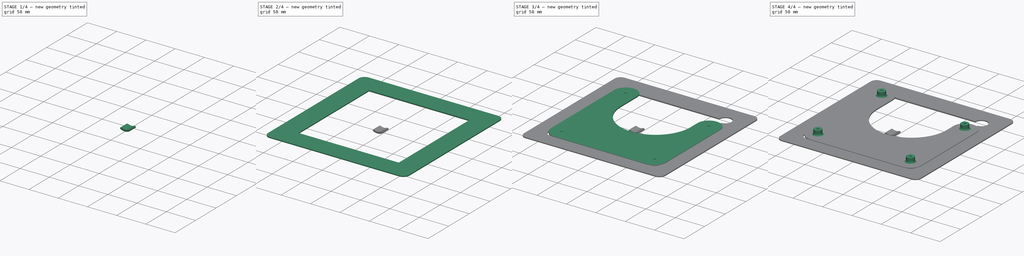
[diagram: build sequence overview — one tinted view per stage of 4, left to right]
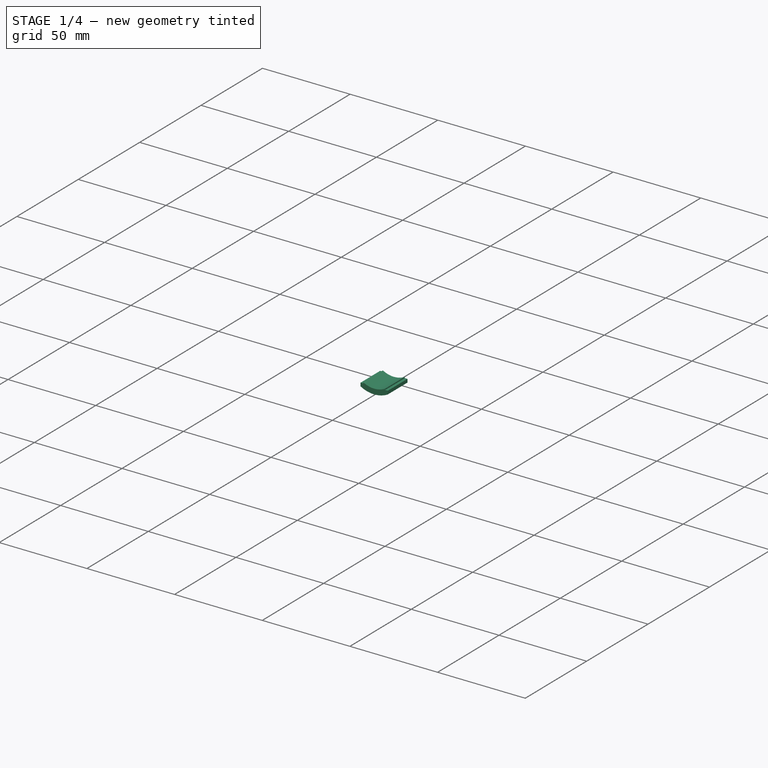
[diagram: stage 1 of 4 — iso view after this stage's code; geometry added in this stage tinted green]
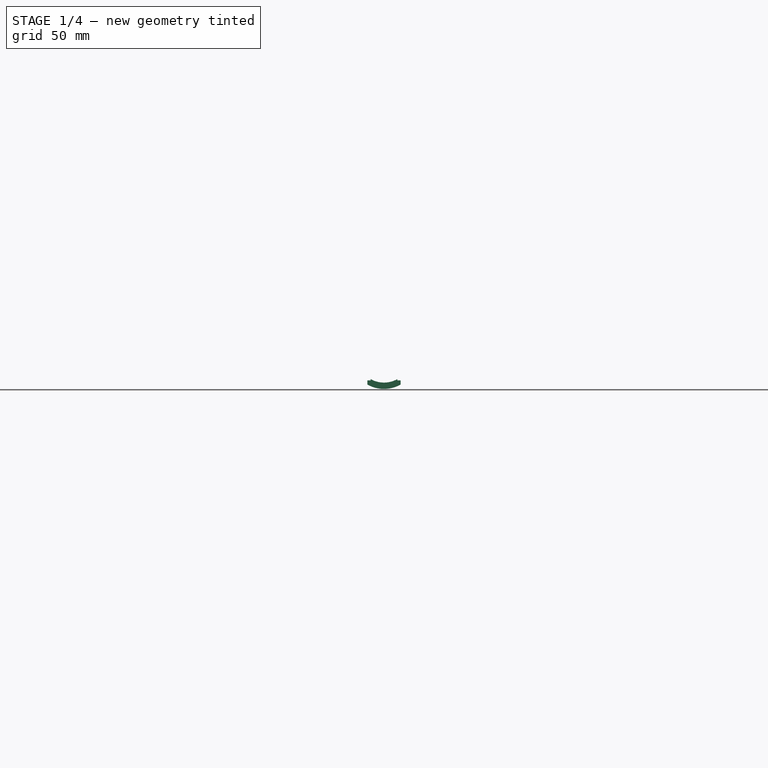
[diagram: stage 1 of 4 — front view after this stage's code; geometry added in this stage tinted green]
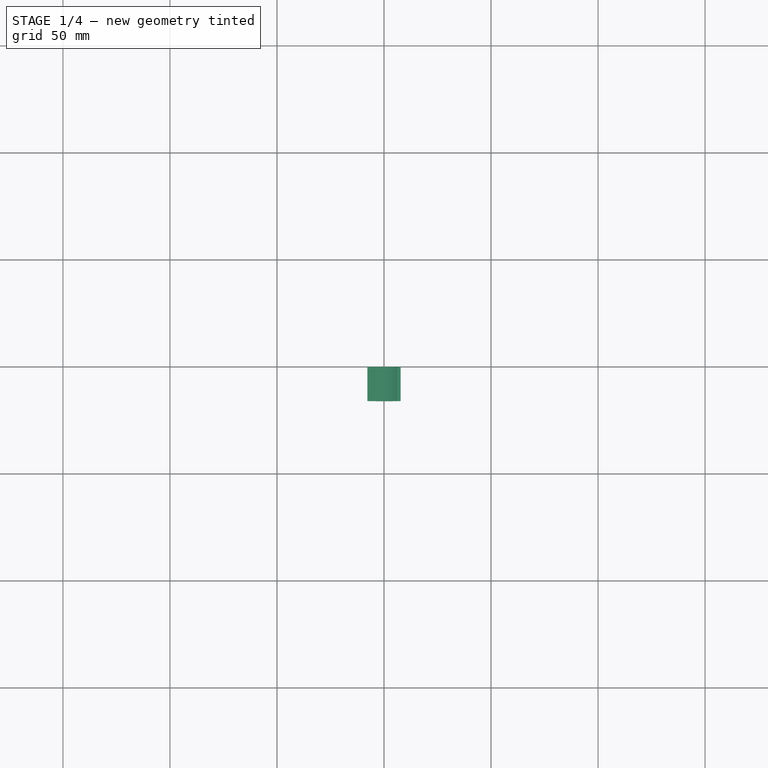
[diagram: stage 1 of 4 — top view after this stage's code; geometry added in this stage tinted green]
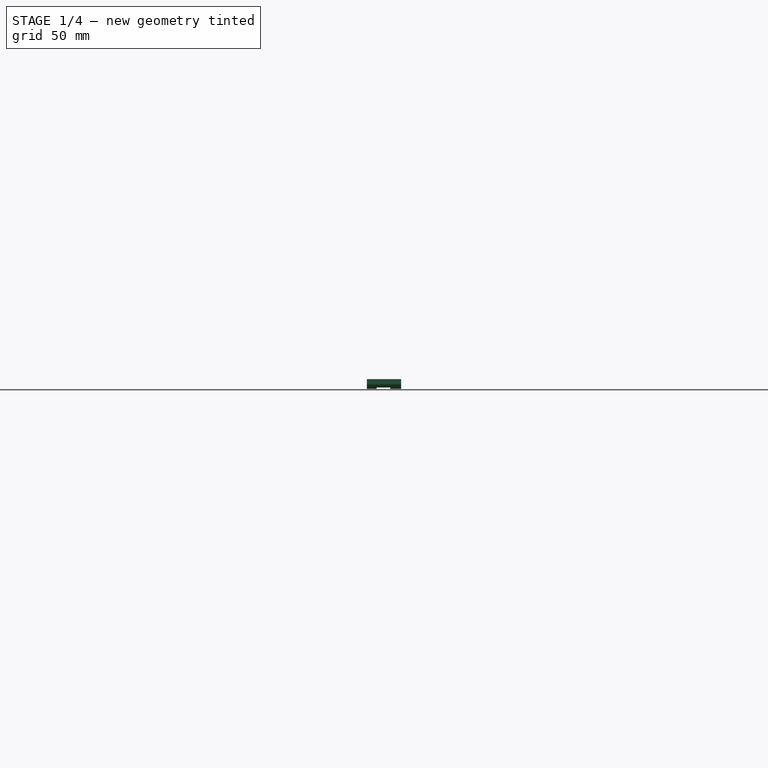
[diagram: stage 1 of 4 — right view after this stage's code; geometry added in this stage tinted green]
FCSTD DOCUMENT  (FreeCAD 1.0R39319 (Git))
Label: Controller Test Stand
License: All rights reserved
LicenseURL: https://en.wikipedia.org/wiki/All_rights_reserved
objects: Sketcher::SketchObject×8, PartDesign::Pad×5, PartDesign::Body×3, PartDesign::Pocket×3, PartDesign::Fillet×1
note: 46 computed .brp shape members not serialized (recipe doc carries the construction recipe); baked Part::Feature solids carry a one-line shape summary decoded from their .brp

FEATURE [PartDesign::Body] Body001  label="Stencil Holder"
  AllowCompound = false
  Group = -> [Sketch002,Pad002,Sketch003,Pocket,Sketch004,Pocket001,Sketch005,Pad003]
  Origin = -> Origin001
  Tip = -> Pad003
FEATURE [Sketcher::SketchObject] Sketch006
  ArcFitTolerance = 1e-06
  AttachmentSupport = -> [XZ_Plane002]
  FullyConstrained = true
  MakeInternals = false
  MapMode = 5
  Placement = pos=(0,0,0) rot=(1,0,0;1.5708rad)
  sketch-geometry (8):
    g0: ArcOfCircle CenterX=-7e-16 CenterY=11.6907 CenterZ=0 NormalX=0 NormalY=0 NormalZ=1 AngleXU=0 Radius=12.7 StartAngle=4.19786 EndAngle=5.22692
    g1: LineSegment StartX=6.25 StartY=0.635 StartZ=0 EndX=6.25 EndY=0 EndZ=0
    g2: LineSegment StartX=6.25 StartY=0 StartZ=0 EndX=7.774 EndY=0 EndZ=0
    g3: LineSegment StartX=7.774 StartY=0 StartZ=0 EndX=7.774 EndY=-1.905 EndZ=0
    g4: LineSegment StartX=-6.25 StartY=0.635 StartZ=0 EndX=-6.25 EndY=0 EndZ=0
    g5: LineSegment StartX=-6.25 StartY=0 StartZ=0 EndX=-7.774 EndY=0 EndZ=0
    g6: LineSegment StartX=-7.774 StartY=0 StartZ=0 EndX=-7.774 EndY=-1.905 EndZ=0
    g7: ArcOfCircle CenterX=3e-16 CenterY=11.6907 CenterZ=0 NormalX=0 NormalY=0 NormalZ=1 AngleXU=0 Radius=15.6613 StartAngle=4.19296 EndAngle=5.23182
  constraints (24):
    c: Coincident(g0,g1)
    c: Coincident(g1,g2)
    c: Horizontal(g2)
    c: Coincident(g2,g3)
    c: Vertical(g3)
    c: Coincident(g0,g4)
    c: Coincident(g4,g5)
    c: Horizontal(g5)
    c: Coincident(g5,g6)
    c: Vertical(g6)
    c: Coincident(g7,g6)
    c: Coincident(g7,g3)
    c: Symmetric(g6,g3,g-2)
    c: Symmetric(g0,g0,g-2)
    c: Vertical(g4)
    c: Vertical(g1)
    c: DistanceX(g0,g0) = 12.5
    c: Equal(g4,g1)
    c: Distance(g1,g1) = 0.635
    c: Distance(g2,g2) = 1.524
    c: Coincident(g7,g0)
    c: PointOnObject(g4,g-1)
    c: Radius(g0) = 12.7
    c: DistanceY(g3,g3) = 1.905
FEATURE [PartDesign::Pad] Pad004
  Direction = (0,-1,2e-16)
  Length = 16
  Length2 = 10
  Placement = pos=(0,0,0) rot=(1,0,0;1.5708rad)
  Profile = -> Sketch006
  ReferenceAxis = -> Sketch006 [N_Axis]
  Refine = true
  Suppressed = false
  Type = 0
FEATURE [Sketcher::SketchObject] Sketch007
  ArcFitTolerance = 1e-06
  AttachmentSupport = -> [Pad004]
  FullyConstrained = true
  MakeInternals = false
  MapMode = 5
  Placement = pos=(-7.774,0,0) rot=(0.707107,0,-0.707107;3.14159rad)
  sketch-geometry (4):
    g0: LineSegment StartX=3.302 StartY=11.43 StartZ=0 EndX=3.302 EndY=5.08 EndZ=0
    g1: LineSegment StartX=3.302 StartY=5.08 StartZ=0 EndX=16.002 EndY=5.08 EndZ=0
    g2: LineSegment StartX=16.002 StartY=5.08 StartZ=0 EndX=16.002 EndY=11.43 EndZ=0
    g3: LineSegment StartX=16.002 StartY=11.43 StartZ=0 EndX=3.302 EndY=11.43 EndZ=0
  constraints (12):
    c: Coincident(g0,g1)
    c: Coincident(g1,g2)
    c: Coincident(g2,g3)
    c: Coincident(g3,g0)
    c: Vertical(g0)
    c: Vertical(g2)
    c: Horizontal(g1)
    c: Horizontal(g3)
    c: DistanceX(g1,g1) = 12.7
    c: DistanceY(g0,g0) = 6.35
    c: Distance(g-2,g0) = 3.302
    c: Distance(g-1,g1) = 5.08
FEATURE [PartDesign::Pocket] Pocket002
  BaseFeature = -> Pad004
  Direction = (1,0,2e-16)
  Length = 5
  Length2 = 5
  Placement = pos=(0,0,0) rot=(1,0,0;1.5708rad)
  Profile = -> Sketch007
  ReferenceAxis = -> Sketch007 [N_Axis]
  Refine = true
  Suppressed = false
  Type = 1
FEATURE [PartDesign::Body] Body002  label="Strain Releif"
  AllowCompound = false
  Group = -> [Sketch006,Pad004,Sketch007,Pocket002]
  Origin = -> Origin002
  Tip = -> Pocket002
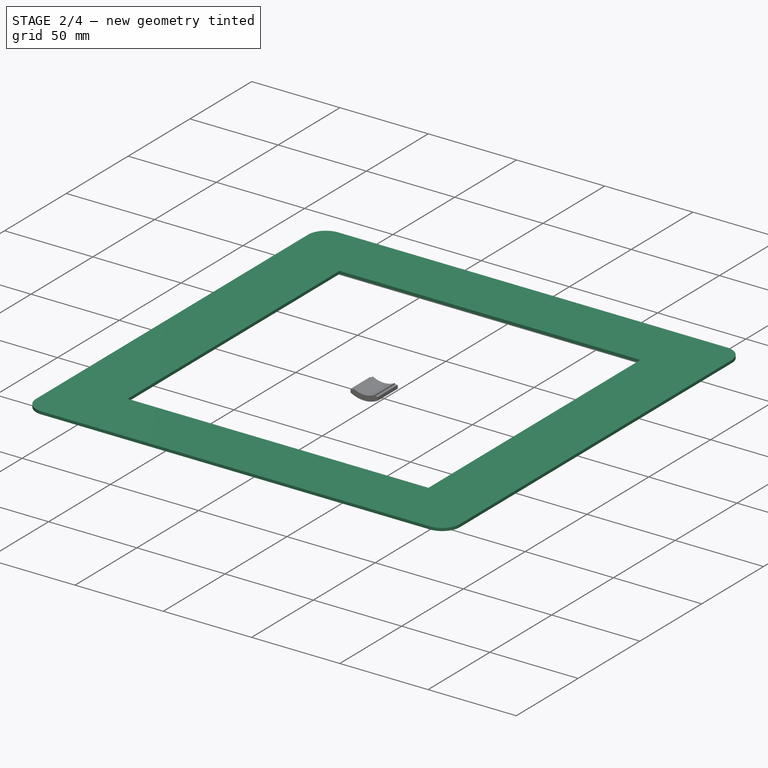
[diagram: stage 2 of 4 — iso view after this stage's code; geometry added in this stage tinted green]
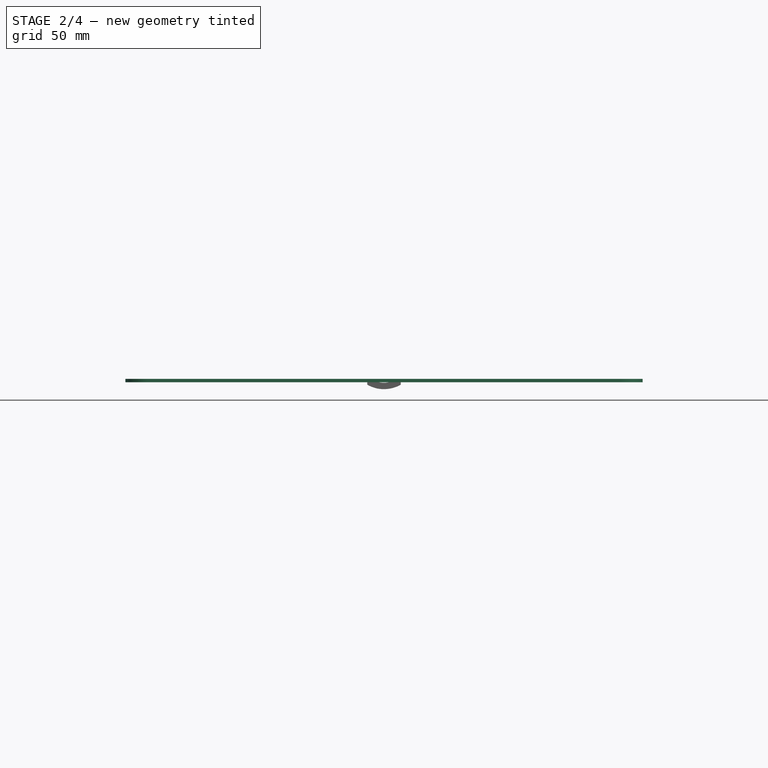
[diagram: stage 2 of 4 — front view after this stage's code; geometry added in this stage tinted green]
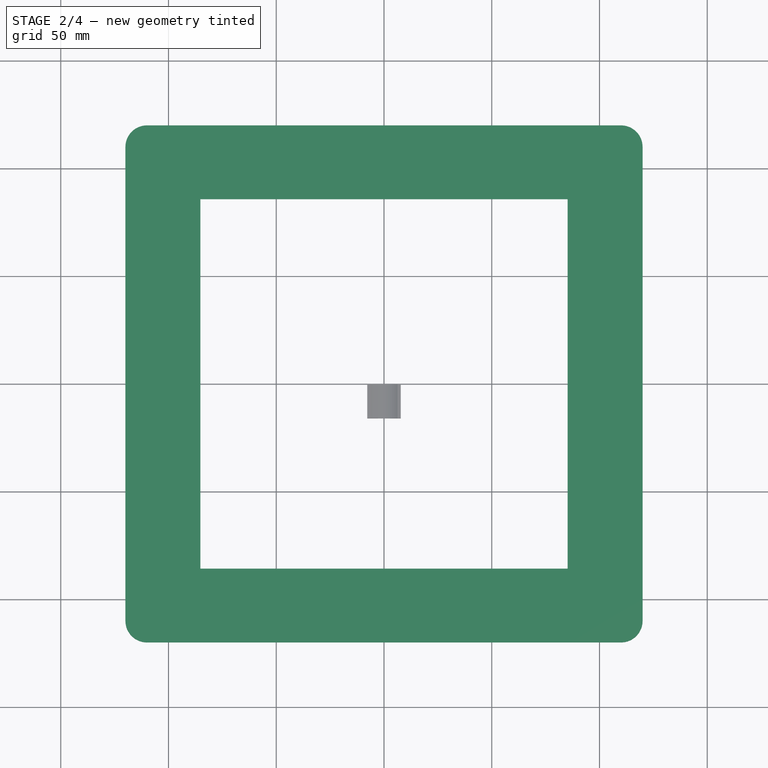
[diagram: stage 2 of 4 — top view after this stage's code; geometry added in this stage tinted green]
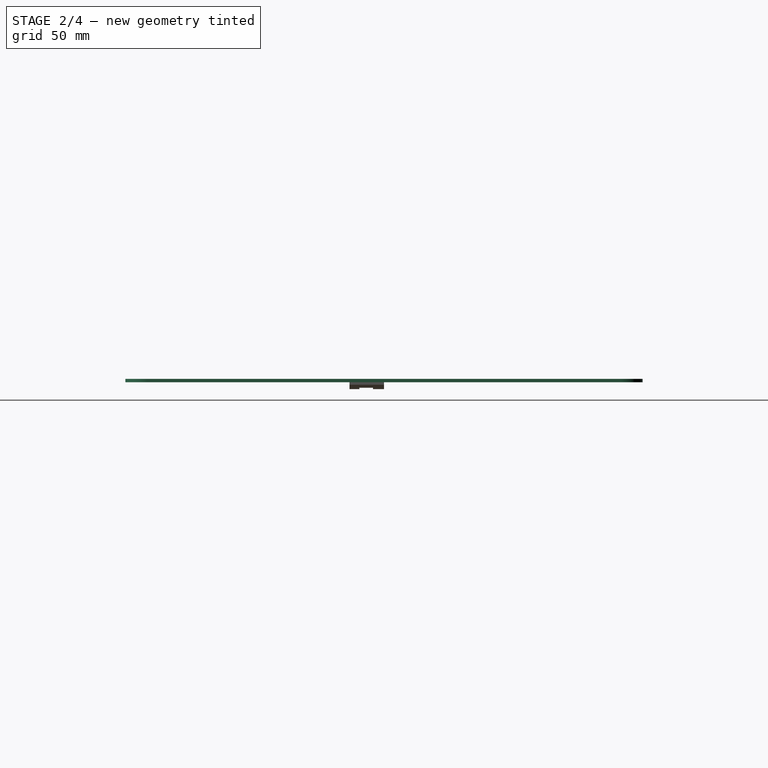
[diagram: stage 2 of 4 — right view after this stage's code; geometry added in this stage tinted green]
FEATURE [PartDesign::Body] Body  label="Test Stand"
  AllowCompound = false
  Group = -> [Sketch,Pad,Sketch001,Pad001,Fillet]
  Origin = -> Origin
  Tip = -> Fillet
FEATURE [Sketcher::SketchObject] Sketch002
  ArcFitTolerance = 1e-06
  AttachmentSupport = -> [XY_Plane001]
  FullyConstrained = true
  MakeInternals = false
  MapMode = 5
  sketch-geometry (10):
    g0: LineSegment StartX=-110 StartY=-120 StartZ=0 EndX=110 EndY=-120 EndZ=0
    g1: LineSegment StartX=120 StartY=-110 StartZ=0 EndX=120 EndY=110 EndZ=0
    g2: LineSegment StartX=110 StartY=120 StartZ=0 EndX=-110 EndY=120 EndZ=0
    g3: LineSegment StartX=-120 StartY=110 StartZ=0 EndX=-120 EndY=-110 EndZ=0
    g4: ArcOfCircle CenterX=-110 CenterY=-110 CenterZ=0 NormalX=0 NormalY=0 NormalZ=1 AngleXU=0 Radius=10 StartAngle=3.14159 EndAngle=4.71239
    g5: ArcOfCircle CenterX=110 CenterY=-110 CenterZ=0 NormalX=0 NormalY=0 NormalZ=1 AngleXU=0 Radius=10 StartAngle=4.71239 EndAngle=6.28319
    g6: ArcOfCircle CenterX=110 CenterY=110 CenterZ=0 NormalX=0 NormalY=0 NormalZ=1 AngleXU=0 Radius=10 StartAngle=4e-16 EndAngle=1.5708
    g7: ArcOfCircle CenterX=-110 CenterY=110 CenterZ=0 NormalX=0 NormalY=0 NormalZ=1 AngleXU=0 Radius=10 StartAngle=1.5708 EndAngle=3.14159
    g8: GeomPoint [constr] X=-120 Y=-120 Z=0
    g9: GeomPoint [constr] X=120 Y=120 Z=0
  constraints (23):
    c: Tangent(g0,g4) = -1.5708
    c: Tangent(g0,g5) = -1.5708
    c: Tangent(g1,g5) = -1.5708
    c: Tangent(g1,g6) = -1.5708
    c: Tangent(g2,g6) = -1.5708
    c: Tangent(g2,g7) = -1.5708
    c: Tangent(g3,g7) = -1.5708
    c: Tangent(g3,g4) = -1.5708
    c: Horizontal(g0)
    c: Horizontal(g2)
    c: Vertical(g1)
    c: Vertical(g3)
    c: Equal(g4,g5)
    c: Equal(g5,g6)
    c: Equal(g6,g7)
    c: PointOnObject(g8,g0)
    c: PointOnObject(g8,g3)
    c: PointOnObject(g9,g1)
    c: PointOnObject(g9,g2)
    c: Symmetric(g6,g4,g-1)
    c: Equal(g1,g2)
    c: DistanceY(g0,g2) = 240
    c: Radius(g6) = 10
FEATURE [PartDesign::Pad] Pad002
  Direction = (0,0,1)
  Length = 1.6
  Length2 = 10
  Midplane = true
  Profile = -> Sketch002
  ReferenceAxis = -> Sketch002 [N_Axis]
  Refine = true
  Suppressed = false
  Type = 0
FEATURE [Sketcher::SketchObject] Sketch003
  ArcFitTolerance = 1e-06
  AttachmentSupport = -> [Pad002]
  FullyConstrained = true
  MakeInternals = false
  MapMode = 5
  Placement = pos=(0,0,0.8) rot=(0,0,1;0rad)
  sketch-geometry (4):
    g0: LineSegment StartX=-85.221 StartY=85.729 StartZ=0 EndX=-85.221 EndY=-85.729 EndZ=0
    g1: LineSegment StartX=-85.221 StartY=-85.729 StartZ=0 EndX=85.221 EndY=-85.729 EndZ=0
    g2: LineSegment StartX=85.221 StartY=-85.729 StartZ=0 EndX=85.221 EndY=85.729 EndZ=0
    g3: LineSegment StartX=85.221 StartY=85.729 StartZ=0 EndX=-85.221 EndY=85.729 EndZ=0
  constraints (11):
    c: Coincident(g0,g1)
    c: Coincident(g1,g2)
    c: Coincident(g2,g3)
    c: Coincident(g3,g0)
    c: Vertical(g0)
    c: Vertical(g2)
    c: Horizontal(g1)
    c: Horizontal(g3)
    c: DistanceX(g1,g1) = 170.442
    c: DistanceY(g2,g2) = 171.458
    c: Symmetric(g0,g2,g-1)
FEATURE [PartDesign::Pocket] Pocket
  BaseFeature = -> Pad002
  Direction = (0,0,-1)
  Length = 5
  Length2 = 5
  Profile = -> Sketch003
  ReferenceAxis = -> Sketch003 [N_Axis]
  Refine = true
  Suppressed = false
  Type = 1
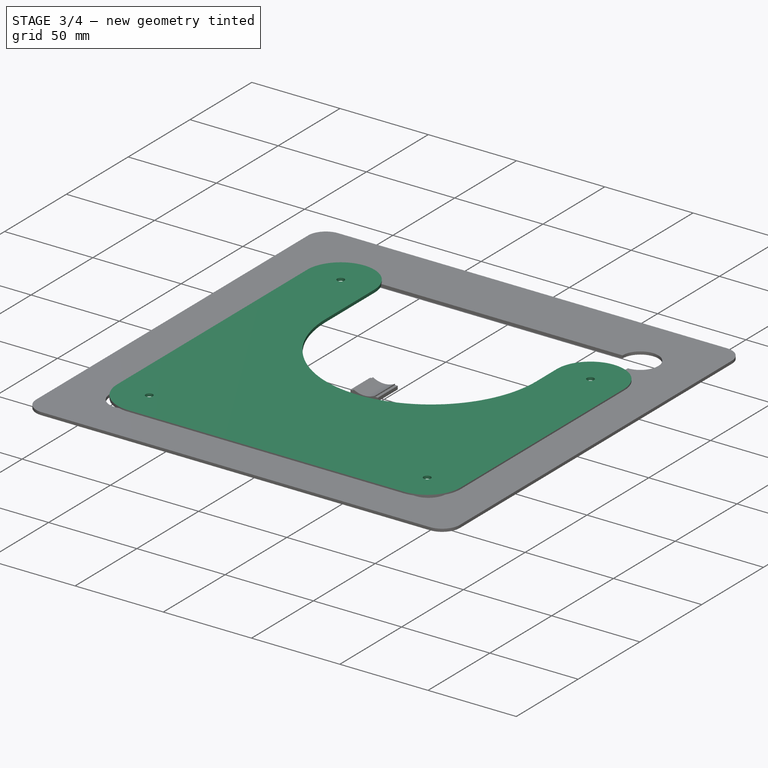
[diagram: stage 3 of 4 — iso view after this stage's code; geometry added in this stage tinted green]
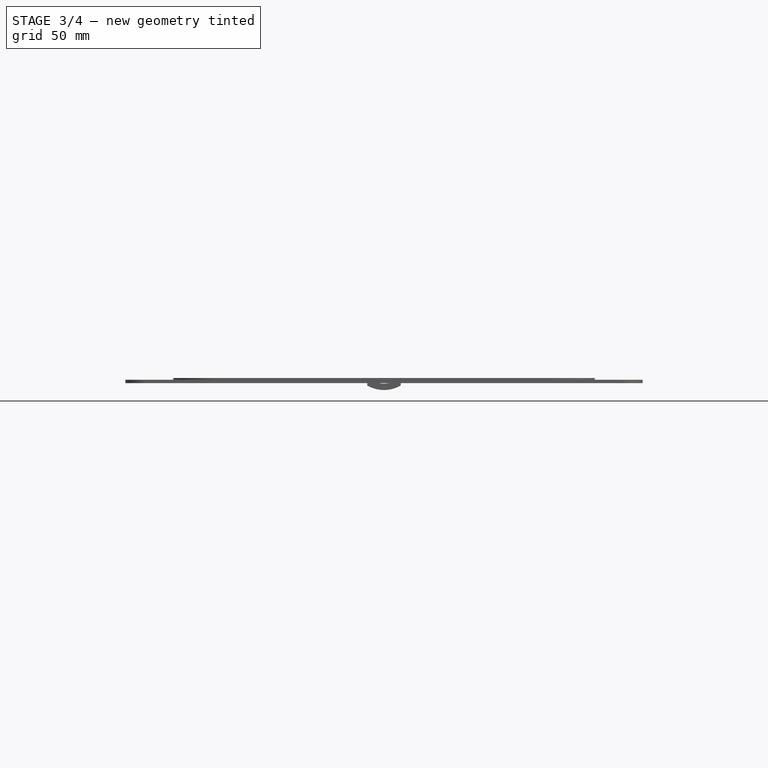
[diagram: stage 3 of 4 — front view after this stage's code; geometry added in this stage tinted green]
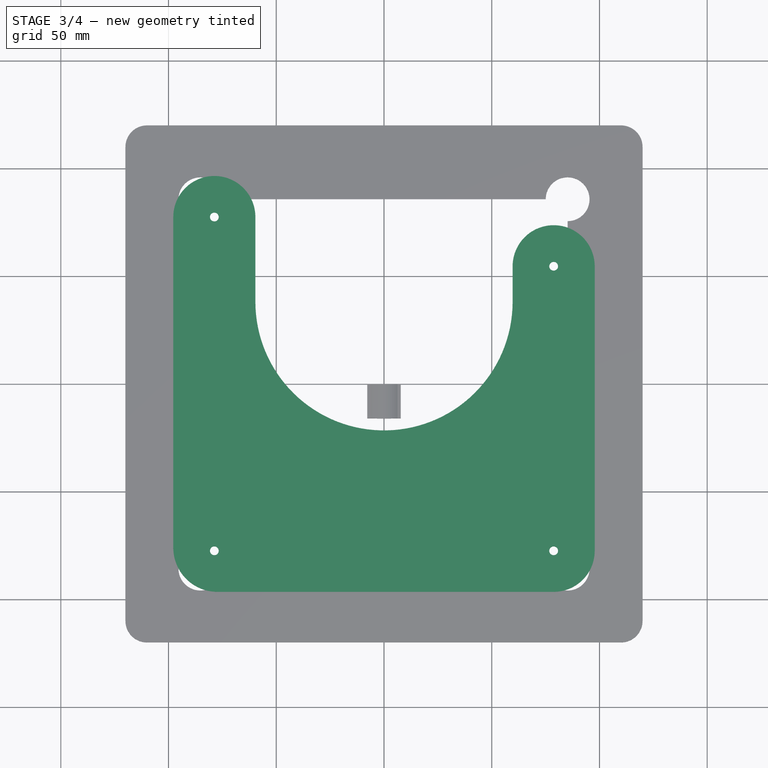
[diagram: stage 3 of 4 — top view after this stage's code; geometry added in this stage tinted green]
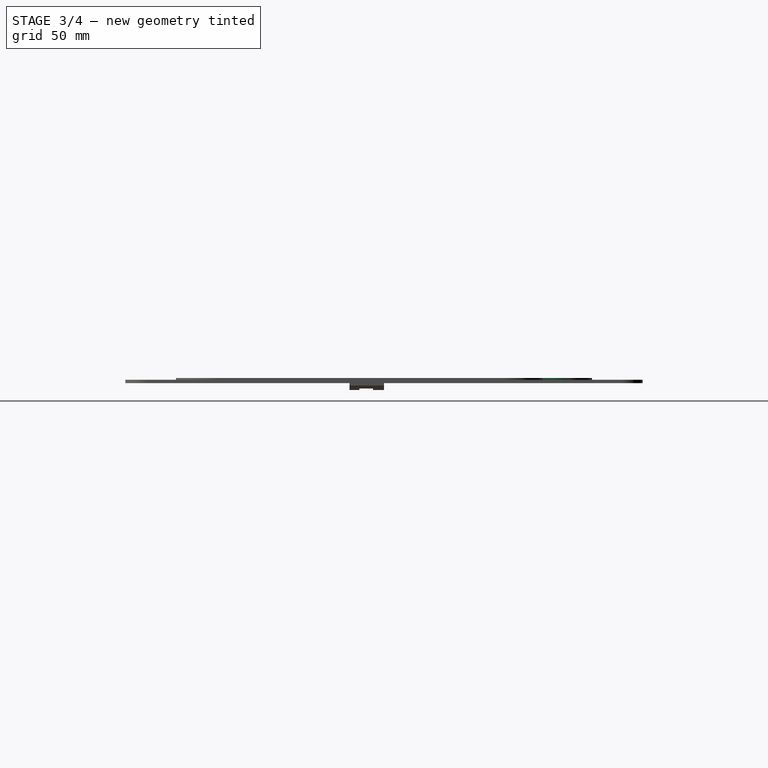
[diagram: stage 3 of 4 — right view after this stage's code; geometry added in this stage tinted green]
FEATURE [Sketcher::SketchObject] Sketch
  ArcFitTolerance = 1e-06
  AttachmentSupport = -> [XY_Plane]
  FullyConstrained = true
  MakeInternals = false
  MapMode = 5
  sketch-geometry (17):
    g0: LineSegment [constr] StartX=-78.74 StartY=-77.47 StartZ=0 EndX=78.74 EndY=-77.47 EndZ=0
    g1: LineSegment [constr] StartX=78.74 StartY=-77.47 StartZ=0 EndX=78.74 EndY=54.61 EndZ=0
    g2: LineSegment [constr] StartX=-78.74 StartY=-77.47 StartZ=0 EndX=-78.74 EndY=77.47 EndZ=0
    g3: Circle CenterX=-78.74 CenterY=77.47 CenterZ=0 NormalX=0 NormalY=0 NormalZ=1 AngleXU=0 Radius=2.032
    g4: Circle CenterX=78.74 CenterY=54.61 CenterZ=0 NormalX=0 NormalY=0 NormalZ=1 AngleXU=0 Radius=2.032
    g5: Circle CenterX=78.74 CenterY=-77.47 CenterZ=0 NormalX=0 NormalY=0 NormalZ=1 AngleXU=0 Radius=2.032
    g6: Circle CenterX=-78.74 CenterY=-77.47 CenterZ=0 NormalX=0 NormalY=0 NormalZ=1 AngleXU=0 Radius=2.032
    g7: ArcOfCircle CenterX=-77.3032 CenterY=-76.0332 CenterZ=0 NormalX=0 NormalY=0 NormalZ=1 AngleXU=0 Radius=20.4868 StartAngle=3.14159 EndAngle=4.71239
    g8: ArcOfCircle CenterX=-78.74 CenterY=77.47 CenterZ=0 NormalX=0 NormalY=0 NormalZ=1 AngleXU=0 Radius=19.05 StartAngle=0 EndAngle=3.14159
    g9: ArcOfCircle CenterX=-6e-16 CenterY=38.1 CenterZ=0 NormalX=0 NormalY=0 NormalZ=1 AngleXU=0 Radius=59.69 StartAngle=3.14159 EndAngle=6.28319
    g10: ArcOfCircle CenterX=78.74 CenterY=54.61 CenterZ=0 NormalX=0 NormalY=0 NormalZ=1 AngleXU=0 Radius=19.05 StartAngle=0 EndAngle=3.14159
    g11: ArcOfCircle CenterX=78.74 CenterY=-77.47 CenterZ=0 NormalX=0 NormalY=0 NormalZ=1 AngleXU=0 Radius=19.05 StartAngle=4.71239 EndAngle=6.28319
    g12: LineSegment StartX=-59.69 StartY=77.47 StartZ=0 EndX=-59.69 EndY=38.1 EndZ=0
    g13: LineSegment StartX=59.69 StartY=38.1 StartZ=0 EndX=59.69 EndY=54.61 EndZ=0
    g14: LineSegment StartX=97.79 StartY=54.61 StartZ=0 EndX=97.79 EndY=-77.47 EndZ=0
    g15: LineSegment StartX=78.74 StartY=-96.52 StartZ=0 EndX=-77.3032 EndY=-96.52 EndZ=0
    g16: LineSegment StartX=-97.79 StartY=-76.0332 StartZ=0 EndX=-97.79 EndY=77.47 EndZ=0
  constraints (38):
    c: Coincident(g1,g0)
    c: Vertical(g1)
    c: Coincident(g2,g0)
    c: DistanceX(g0,g0) = 157.48
    c: DistanceY(g1,g1) = 132.08
    c: DistanceY(g2,g2) = 154.94
    c: Symmetric(g0,g0,g-2)
    c: Symmetric(g2,g0,g-1)
    c: Coincident(g3,g2)
    c: Coincident(g4,g1)
    c: Coincident(g5,g0)
    c: Coincident(g6,g0)
    c: Equal(g6,g3)
    c: Equal(g3,g4)
    c: Equal(g4,g5)
    c: Diameter(g4) = 4.064
    c: PointOnObject(g7,g6)
    c: Coincident(g10,g1)
    c: Coincident(g11,g0)
    c: Horizontal(g15)
    c: Vertical(g16)
    c: Vertical(g12)
    c: Vertical(g13)
    c: Vertical(g14)
    c: Tangent(g13,g9) = -1.5708
    c: Tangent(g12,g9) = -1.5708
    c: Tangent(g12,g8) = 1.5708
    c: Tangent(g16,g8) = 1.5708
    c: Tangent(g16,g7) = 1.5708
    c: Tangent(g15,g7) = 1.5708
    c: Tangent(g15,g11) = 1.5708
    c: Tangent(g14,g11) = 1.5708
    c: Tangent(g14,g10) = 1.5708
    c: Tangent(g13,g10) = 1.5708
    c: Distance(g14,g13) = 38.1
    c: Equal(g8,g10)
    c: Distance(g9,g-1) = 38.1
    c: Coincident(g8,g2)
FEATURE [PartDesign::Pad] Pad
  Direction = (0,0,1)
  Length = 1.6002
  Length2 = 10
  Profile = -> Sketch
  ReferenceAxis = -> Sketch [N_Axis]
  Refine = true
  Suppressed = false
  Type = 0
FEATURE [Sketcher::SketchObject] Sketch004
  ArcFitTolerance = 1e-06
  AttachmentSupport = -> [Pocket]
  ExternalGeometry = -> [Pocket]
  FullyConstrained = true
  MakeInternals = false
  MapMode = 5
  Placement = pos=(0,0,0.8) rot=(0,0,1;0rad)
  sketch-geometry (4):
    g0: Circle CenterX=-85.221 CenterY=85.729 CenterZ=0 NormalX=0 NormalY=0 NormalZ=1 AngleXU=0 Radius=10.16
    g1: Circle CenterX=85.221 CenterY=85.729 CenterZ=0 NormalX=0 NormalY=0 NormalZ=1 AngleXU=0 Radius=10.16
    g2: Circle CenterX=85.221 CenterY=-85.729 CenterZ=0 NormalX=0 NormalY=0 NormalZ=1 AngleXU=0 Radius=10.16
    g3: Circle CenterX=-85.221 CenterY=-85.729 CenterZ=0 NormalX=0 NormalY=0 NormalZ=1 AngleXU=0 Radius=10.16
  constraints (8):
    c: Coincident(g0,g-4)
    c: Coincident(g1,g-3)
    c: Coincident(g2,g-6)
    c: Coincident(g3,g-5)
    c: Equal(g3,g0)
    c: Equal(g0,g1)
    c: Equal(g1,g2)
    c: Diameter(g2) = 20.32
FEATURE [PartDesign::Pocket] Pocket001
  BaseFeature = -> Pocket
  Direction = (0,0,-1)
  Length = 5.08
  Length2 = 5
  Profile = -> Sketch004
  ReferenceAxis = -> Sketch004 [N_Axis]
  Refine = true
  Suppressed = false
  Type = 0
FEATURE [Sketcher::SketchObject] Sketch005
  ArcFitTolerance = 1e-06
  AttachmentSupport = -> [Pocket001]
  ExternalGeometry = -> [Pocket001]
  FullyConstrained = true
  MakeInternals = false
  MapMode = 5
  Placement = pos=(0,0,0.8) rot=(0,0,1;0rad)
  sketch-geometry (5):
    g0: ArcOfCircle CenterX=48.221 CenterY=-71.729 CenterZ=0 NormalX=0 NormalY=0 NormalZ=1 AngleXU=0 Radius=6 StartAngle=-9e-16 EndAngle=3.14159
    g1: LineSegment StartX=42.221 StartY=-71.729 StartZ=0 EndX=42.221 EndY=-85.729 EndZ=0
    g2: LineSegment StartX=42.221 StartY=-85.729 StartZ=0 EndX=54.221 EndY=-85.729 EndZ=0
    g3: LineSegment StartX=54.221 StartY=-85.729 StartZ=0 EndX=54.221 EndY=-71.729 EndZ=0
    g4: LineSegment [constr] StartX=48.221 StartY=-85.729 StartZ=0 EndX=48.221 EndY=-65.729 EndZ=0
  constraints (15):
    c: Tangent(g0,g1) = -1.5708
    c: Coincident(g1,g2)
    c: Coincident(g2,g3)
    c: Tangent(g3,g0) = -1.5708
    c: PointOnObject(g1,g-4)
    c: PointOnObject(g2,g-4)
    c: Vertical(g3)
    c: Vertical(g1)
    c: DistanceX(g2,g2) = 12
    c: PointOnObject(g4,g2)
    c: PointOnObject(g4,g0)
    c: Vertical(g4)
    c: DistanceY(g4,g4) = 20
    c: PointOnObject(g0,g4)
    c: Distance(g-3,g3) = 31
FEATURE [PartDesign::Pad] Pad003
  BaseFeature = -> Pocket001
  Direction = (0,0,1)
  Length = 10
  Length2 = 10
  Profile = -> Sketch005
  ReferenceAxis = -> Sketch005 [N_Axis]
  Refine = true
  Suppressed = false
  Type = 3
  UpToFace = -> Pocket001 [Face4]
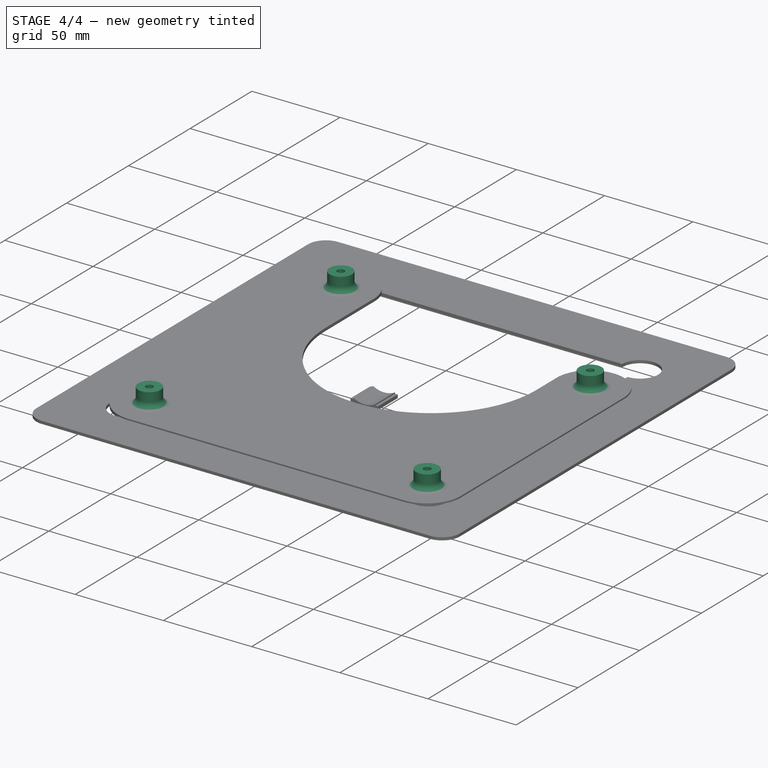
[diagram: stage 4 of 4 — iso view after this stage's code; geometry added in this stage tinted green]
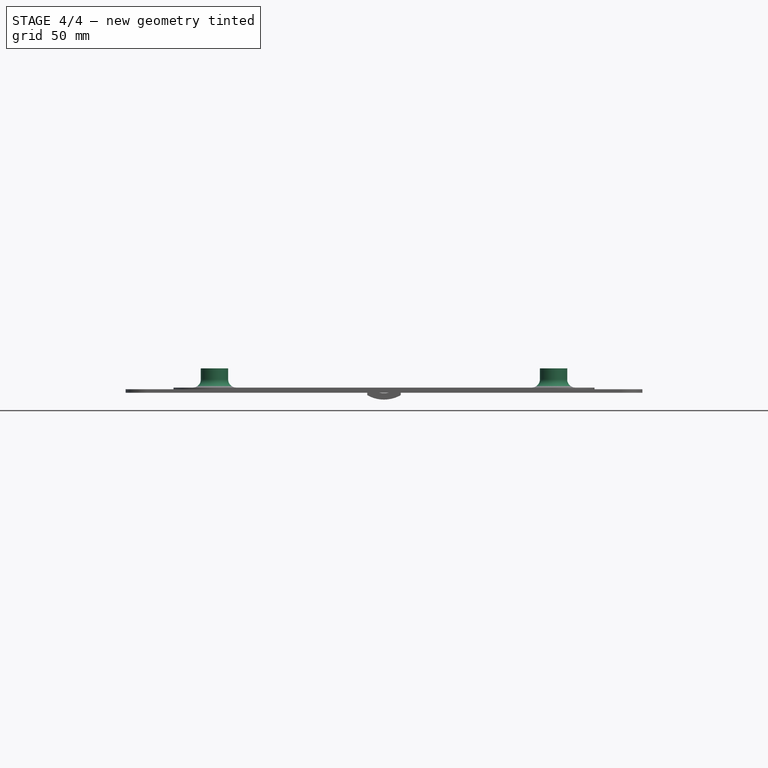
[diagram: stage 4 of 4 — front view after this stage's code; geometry added in this stage tinted green]
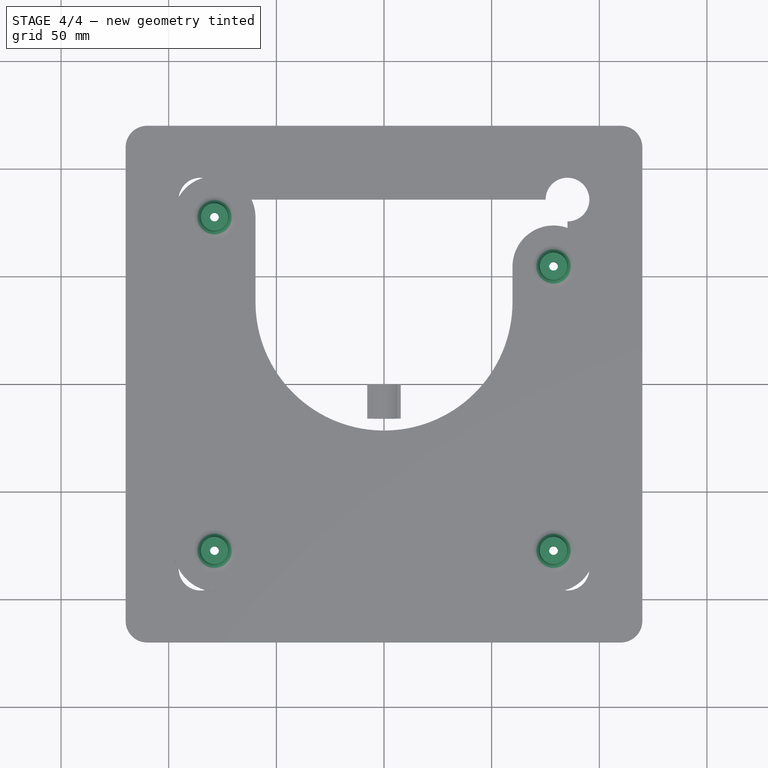
[diagram: stage 4 of 4 — top view after this stage's code; geometry added in this stage tinted green]
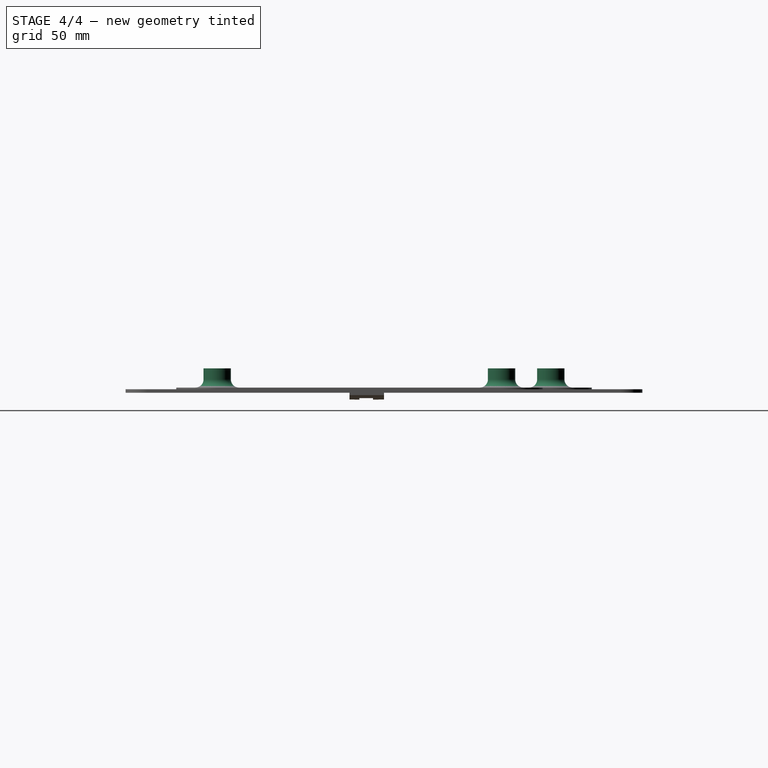
[diagram: stage 4 of 4 — right view after this stage's code; geometry added in this stage tinted green]
FEATURE [Sketcher::SketchObject] Sketch001
  ArcFitTolerance = 1e-06
  AttachmentSupport = -> [Pad]
  ExternalGeometry = -> [Pad]
  FullyConstrained = true
  MakeInternals = false
  MapMode = 5
  Placement = pos=(0,0,1.6002) rot=(0,0,1;0rad)
  sketch-geometry (8):
    g0: Circle CenterX=-78.74 CenterY=77.47 CenterZ=0 NormalX=0 NormalY=0 NormalZ=1 AngleXU=0 Radius=6.35
    g1: Circle CenterX=78.74 CenterY=54.61 CenterZ=0 NormalX=0 NormalY=0 NormalZ=1 AngleXU=0 Radius=6.35
    g2: Circle CenterX=78.74 CenterY=-77.47 CenterZ=0 NormalX=0 NormalY=0 NormalZ=1 AngleXU=0 Radius=6.35
    g3: Circle CenterX=-78.74 CenterY=-77.47 CenterZ=0 NormalX=0 NormalY=0 NormalZ=1 AngleXU=0 Radius=6.35
    g4: Circle CenterX=-78.74 CenterY=77.47 CenterZ=0 NormalX=0 NormalY=0 NormalZ=1 AngleXU=0 Radius=2.032
    g5: Circle CenterX=78.74 CenterY=54.61 CenterZ=0 NormalX=0 NormalY=0 NormalZ=1 AngleXU=0 Radius=2.032
    g6: Circle CenterX=78.74 CenterY=-77.47 CenterZ=0 NormalX=0 NormalY=0 NormalZ=1 AngleXU=0 Radius=2.032
    g7: Circle CenterX=-78.74 CenterY=-77.47 CenterZ=0 NormalX=0 NormalY=0 NormalZ=1 AngleXU=0 Radius=2.032
  constraints (16):
    c: Coincident(g0,g-3)
    c: Coincident(g1,g-6)
    c: Coincident(g2,g-5)
    c: Coincident(g3,g-4)
    c: Equal(g3,g0)
    c: Equal(g0,g1)
    c: Equal(g1,g2)
    c: Diameter(g2) = 12.7
    c: Coincident(g4,g0)
    c: Coincident(g5,g1)
    c: Coincident(g6,g2)
    c: Coincident(g7,g3)
    c: Equal(g6,g5)
    c: Equal(g5,g4)
    c: Equal(g4,g7)
    c: Equal(g7,g-4)
FEATURE [PartDesign::Pad] Pad001
  BaseFeature = -> Pad
  Direction = (0,0,1)
  Length = 8.89
  Length2 = 10
  Profile = -> Sketch001
  ReferenceAxis = -> Sketch001 [N_Axis]
  Refine = true
  Suppressed = false
  Type = 0
FEATURE [PartDesign::Fillet] Fillet
  Base = -> Pad001 [Edge29,Edge30,Edge32,Edge31]
  BaseFeature = -> Pad001
  Radius = 3.81
  Refine = true
  SupportTransform = false
  Suppressed = false
  UseAllEdges = false
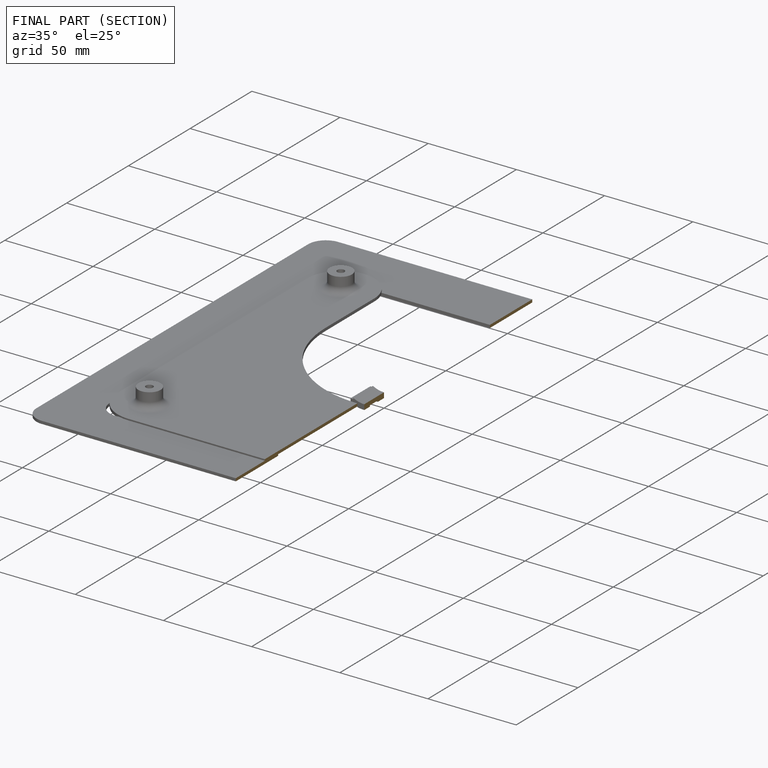
[diagram: finished part — half-section view (interior)]
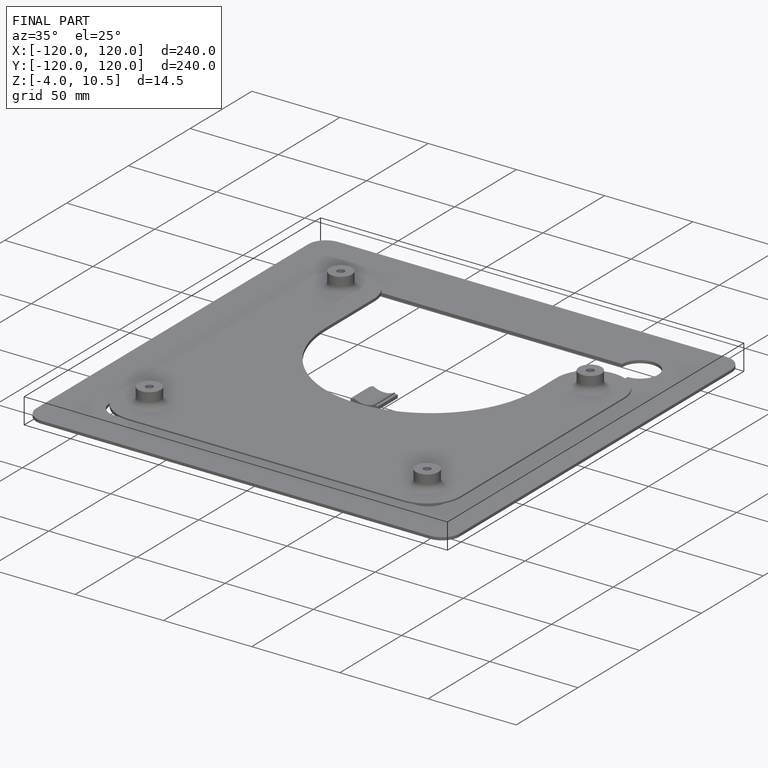
[diagram: finished part — iso view with bounding-box wireframe]
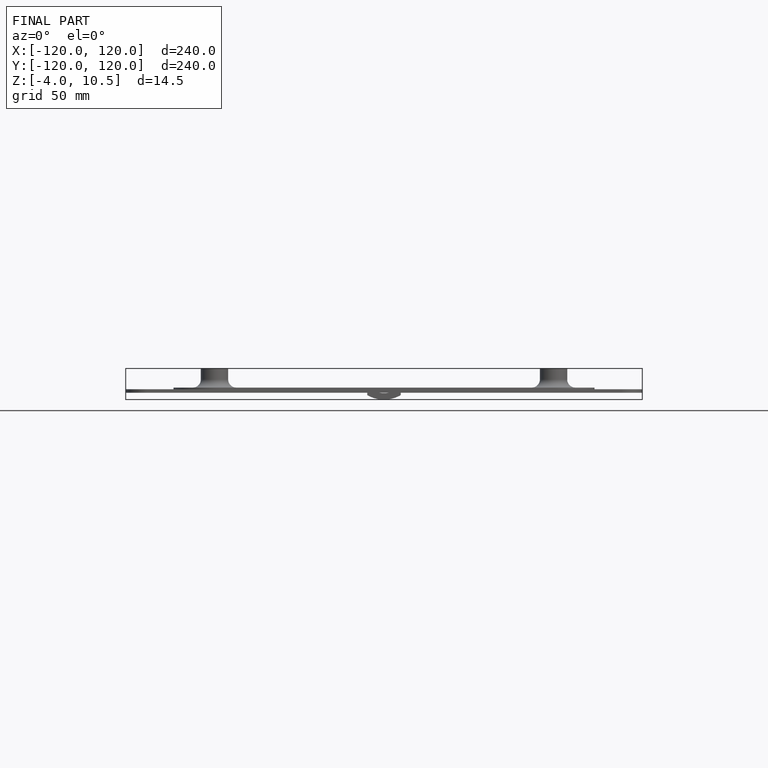
[diagram: finished part — front view with bounding-box wireframe]
